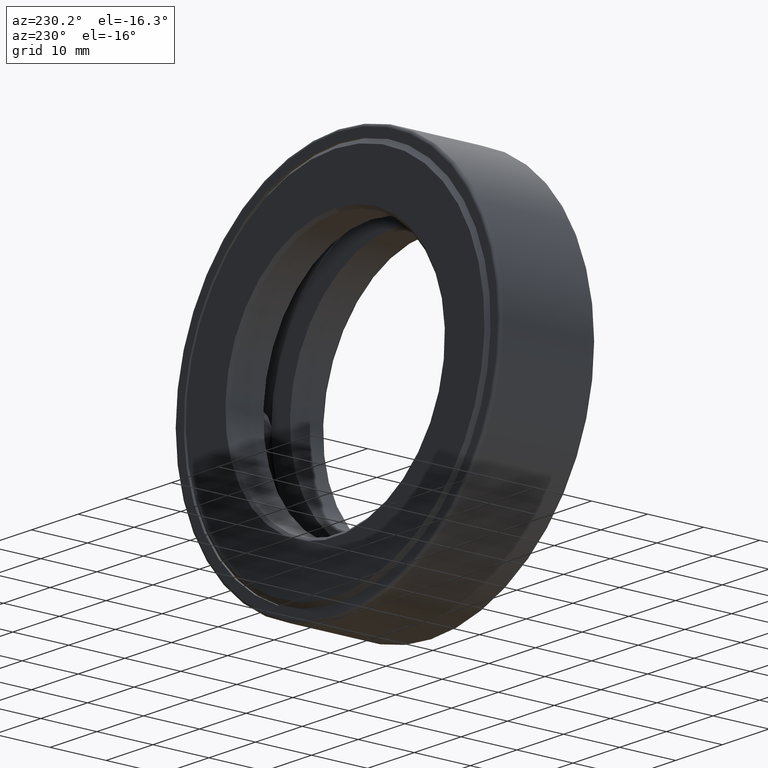
[diagram: clean part render]
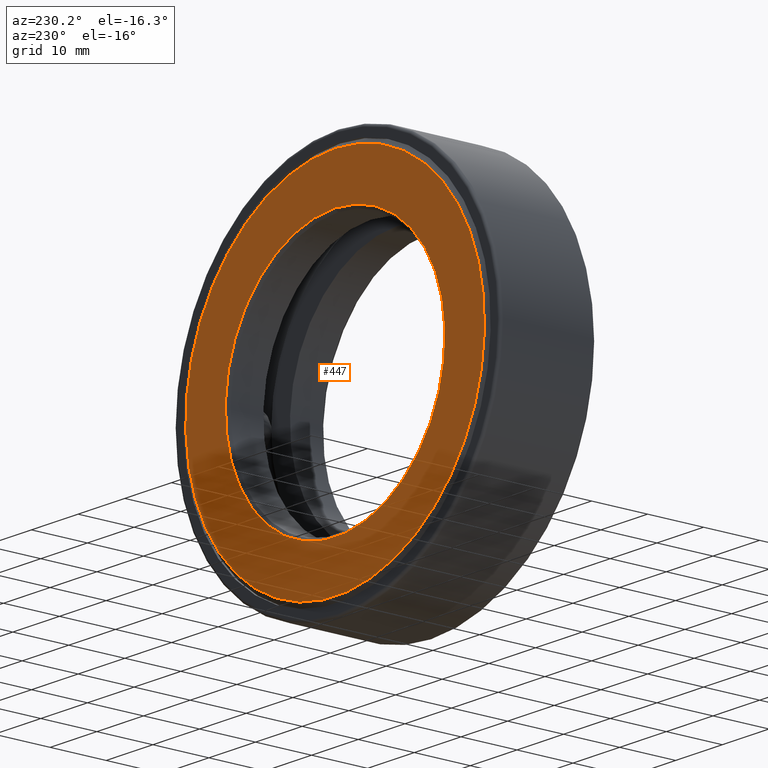
[diagram: same view with one face highlighted and labeled with its STEP entity id]
A machine part, auxiliary view. The second image highlights one B-rep face of the part: STEP entity #447.
In plain terms, the highlighted planar face has unit normal (-0, 1, 0).
Its self-contained STEP definition (entity closure, byte-faithful):
#19 = VERTEX_POINT ( 'NONE', #452 ) ;
#39 = VERTEX_POINT ( 'NONE', #489 ) ;
#40 = EDGE_CURVE ( 'NONE', #39, #39, #267, .T. ) ;
#109 = ORIENTED_EDGE ( 'NONE', *, *, #465, .F. ) ;
#116 = CARTESIAN_POINT ( 'NONE',  ( 0.0000000000000000000, 0.6875000000000000000, 0.0000000000000000000 ) ) ;
#145 = FACE_BOUND ( 'NONE', #347, .T. ) ;
#150 = DIRECTION ( 'NONE',  ( -0.0000000000000000000, 1.000000000000000000, 0.0000000000000000000 ) ) ;
#192 = CARTESIAN_POINT ( 'NONE',  ( 0.0000000000000000000, 0.6875000000000000000, 0.0000000000000000000 ) ) ;
#224 = AXIS2_PLACEMENT_3D ( 'NONE', #116, #315, #311 ) ;
#267 = CIRCLE ( 'NONE', #224, 1.259999999999999600 ) ;
#296 = DIRECTION ( 'NONE',  ( 0.0000000000000000000, 0.0000000000000000000, 1.000000000000000000 ) ) ;
#302 = AXIS2_PLACEMENT_3D ( 'NONE', #342, #150, #493 ) ;
#311 = DIRECTION ( 'NONE',  ( 0.0000000000000000000, 0.0000000000000000000, 1.000000000000000000 ) ) ;
#315 = DIRECTION ( 'NONE',  ( -0.0000000000000000000, 1.000000000000000000, -0.0000000000000000000 ) ) ;
#342 = CARTESIAN_POINT ( 'NONE',  ( 0.0000000000000000000, 0.6875000000000000000, 0.0000000000000000000 ) ) ;
#347 = EDGE_LOOP ( 'NONE', ( #109 ) ) ;
#426 = AXIS2_PLACEMENT_3D ( 'NONE', #192, #534, #296 ) ;
#447 = ADVANCED_FACE ( 'NONE', ( #507, #145 ), #483, .T. ) ;
#452 = CARTESIAN_POINT ( 'NONE',  ( 0.0000000000000000000, 0.6875000000000000000, 0.9262500000000002400 ) ) ;
#465 = EDGE_CURVE ( 'NONE', #19, #19, #481, .T. ) ;
#481 = CIRCLE ( 'NONE', #426, 0.9262500000000002400 ) ;
#483 = PLANE ( 'NONE',  #302 ) ;
#489 = CARTESIAN_POINT ( 'NONE',  ( 0.0000000000000000000, 0.6875000000000000000, 1.259999999999999600 ) ) ;
#493 = DIRECTION ( 'NONE',  ( 0.0000000000000000000, 0.0000000000000000000, 1.000000000000000000 ) ) ;
#507 = FACE_OUTER_BOUND ( 'NONE', #605, .T. ) ;
#534 = DIRECTION ( 'NONE',  ( -0.0000000000000000000, 1.000000000000000000, -0.0000000000000000000 ) ) ;
#553 = ORIENTED_EDGE ( 'NONE', *, *, #40, .T. ) ;
#605 = EDGE_LOOP ( 'NONE', ( #553 ) ) ;